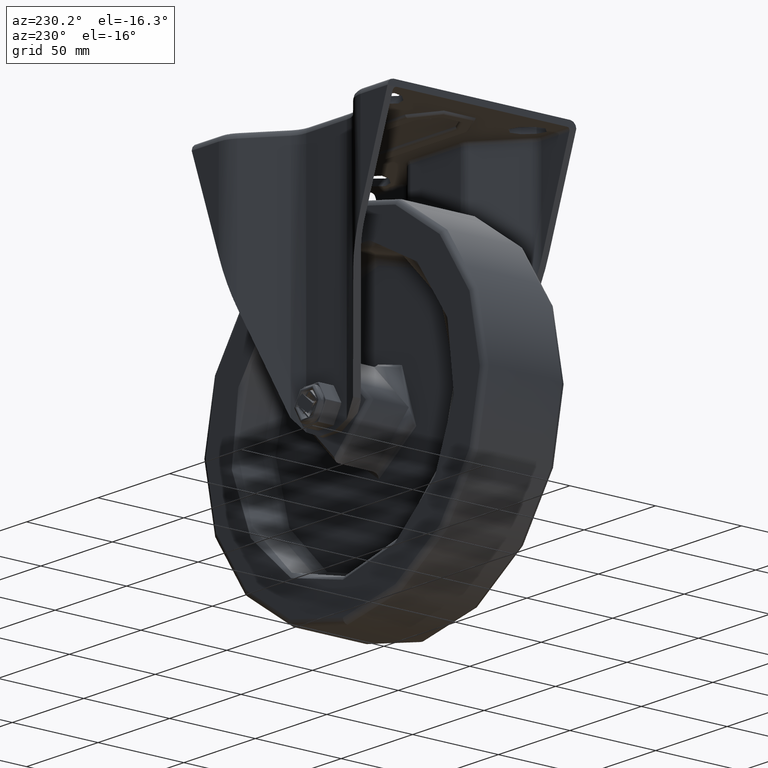
[diagram: clean part render]
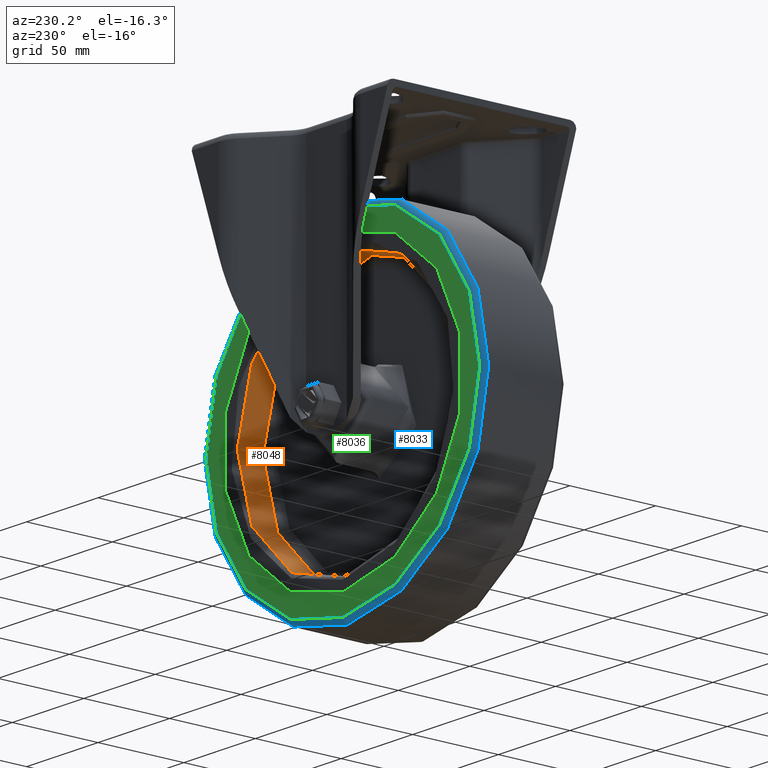
[diagram: same view with three faces highlighted in distinct colors, each labeled with its STEP entity id]
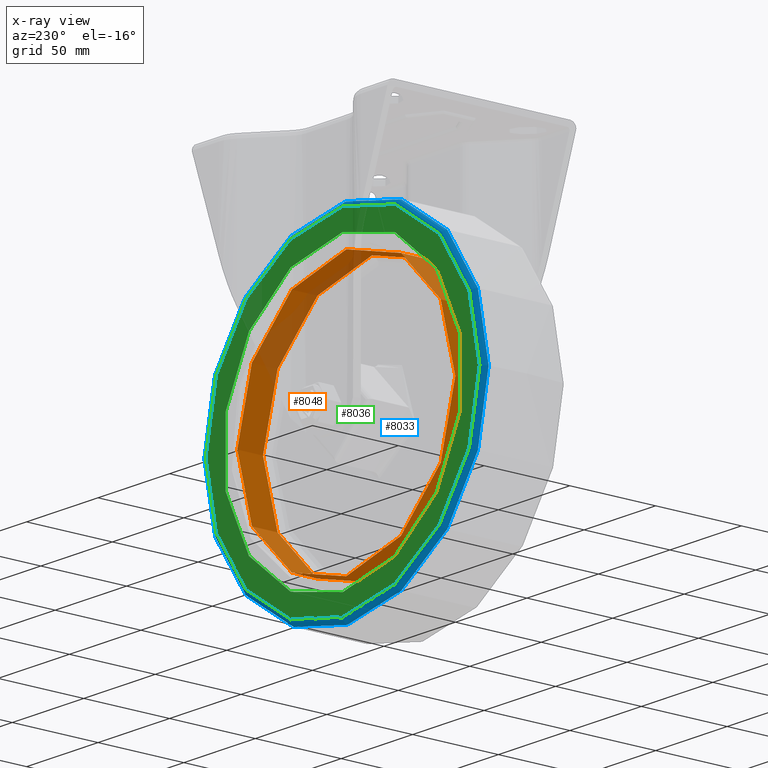
[diagram: x-ray of the same camera — body ghosted, the three highlighted faces saturated]
A machine part, auxiliary view with three faces highlighted in distinct colors.
The next image is the same camera in x-ray (body ghosted, the three faces saturated) — at least one of them is partly hidden behind the body in this view.
Their STEP definitions:

[orange] entity #8048 — the highlighted cylindrical surface (bore or boss wall) has radius 76.25 mm, axis along (0, 1, 0).
#913=FACE_OUTER_BOUND('',#1411,.T.);
#1411=EDGE_LOOP('',(#6142,#6143,#6144,#6145));
#1962=LINE('',#12906,#2587);
#2587=VECTOR('',#10248,76.25);
#3151=CIRCLE('',#8827,76.25);
#3152=CIRCLE('',#8829,76.25);
#3626=VERTEX_POINT('',#12901);
#3627=VERTEX_POINT('',#12905);
#4533=EDGE_CURVE('',#3626,#3626,#3151,.T.);
#4534=EDGE_CURVE('',#3626,#3627,#1962,.T.);
#4535=EDGE_CURVE('',#3627,#3627,#3152,.T.);
#6142=ORIENTED_EDGE('',*,*,#4533,.F.);
#6143=ORIENTED_EDGE('',*,*,#4534,.T.);
#6144=ORIENTED_EDGE('',*,*,#4535,.T.);
#6145=ORIENTED_EDGE('',*,*,#4534,.F.);
#7772=CYLINDRICAL_SURFACE('',#8828,76.25);
#8048=ADVANCED_FACE('',(#913),#7772,.F.);
#8827=AXIS2_PLACEMENT_3D('',#12903,#10244,#10245);
#8828=AXIS2_PLACEMENT_3D('',#12904,#10246,#10247);
#8829=AXIS2_PLACEMENT_3D('',#12907,#10249,#10250);
#10244=DIRECTION('center_axis',(0.,1.,0.));
#10245=DIRECTION('ref_axis',(0.,0.,1.));
#10246=DIRECTION('center_axis',(0.,1.,0.));
#10247=DIRECTION('ref_axis',(0.,0.,1.));
#10248=DIRECTION('',(0.,1.,0.));
#10249=DIRECTION('center_axis',(0.,1.,0.));
#10250=DIRECTION('ref_axis',(0.,0.,1.));
#12901=CARTESIAN_POINT('',(-9.33793184349857E-15,7.00000000000001,-76.25));
#12903=CARTESIAN_POINT('Origin',(0.,7.00000000000001,0.));
#12904=CARTESIAN_POINT('Origin',(0.,14.5,0.));
#12905=CARTESIAN_POINT('',(9.33793184349857E-15,22.0000000000001,-76.25));
#12906=CARTESIAN_POINT('',(-9.33793184349857E-15,14.5,-76.25));
#12907=CARTESIAN_POINT('Origin',(0.,22.0000000000001,0.));

[blue] entity #8033 — the highlighted toroidal blend (fillet) surface has major radius 95.8344 mm and minor (blend) radius 3 mm.
#517=TOROIDAL_SURFACE('',#8782,95.8343644102025,2.99999999999983);
#898=FACE_OUTER_BOUND('',#1394,.T.);
#1394=EDGE_LOOP('',(#6086,#6087,#6088,#6089));
#3122=CIRCLE('',#8783,95.8343644102025);
#3123=CIRCLE('',#8784,2.99999999999983);
#3124=CIRCLE('',#8785,98.8159353890197);
#3605=VERTEX_POINT('',#12805);
#3606=VERTEX_POINT('',#12807);
#4499=EDGE_CURVE('',#3605,#3605,#3122,.T.);
#4500=EDGE_CURVE('',#3605,#3606,#3123,.T.);
#4501=EDGE_CURVE('',#3606,#3606,#3124,.T.);
#6086=ORIENTED_EDGE('',*,*,#4499,.F.);
#6087=ORIENTED_EDGE('',*,*,#4500,.T.);
#6088=ORIENTED_EDGE('',*,*,#4501,.T.);
#6089=ORIENTED_EDGE('',*,*,#4500,.F.);
#8033=ADVANCED_FACE('',(#898),#517,.T.);
#8782=AXIS2_PLACEMENT_3D('',#12804,#10149,#10150);
#8783=AXIS2_PLACEMENT_3D('',#12806,#10151,#10152);
#8784=AXIS2_PLACEMENT_3D('',#12808,#10153,#10154);
#8785=AXIS2_PLACEMENT_3D('',#12809,#10155,#10156);
#10149=DIRECTION('center_axis',(0.,1.,0.));
#10150=DIRECTION('ref_axis',(0.,0.,1.));
#10151=DIRECTION('center_axis',(0.,1.,0.));
#10152=DIRECTION('ref_axis',(0.,0.,1.));
#10153=DIRECTION('center_axis',(-1.,0.,1.22464679914735E-16));
#10154=DIRECTION('ref_axis',(-1.22464679914735E-16,0.,-1.));
#10155=DIRECTION('center_axis',(0.,1.,0.));
#10156=DIRECTION('ref_axis',(0.,0.,1.));
#12804=CARTESIAN_POINT('Origin',(0.,21.0000000000002,0.));
#12805=CARTESIAN_POINT('',(1.17363247623275E-14,24.,-95.8343644102025));
#12806=CARTESIAN_POINT('Origin',(0.,24.,0.));
#12807=CARTESIAN_POINT('',(1.21014618978915E-14,21.3320158102769,-98.8159353890197));
#12808=CARTESIAN_POINT('Origin',(-1.17363247623276E-14,21.0000000000002,
-95.8343644102025));
#12809=CARTESIAN_POINT('Origin',(0.,21.3320158102769,0.));

[green] entity #8036 — the highlighted planar face has unit normal (0, 1, -0).
#264=FACE_BOUND('',#1398,.T.);
#356=PLANE('',#8791);
#901=FACE_OUTER_BOUND('',#1397,.T.);
#1397=EDGE_LOOP('',(#6098));
#1398=EDGE_LOOP('',(#6099));
#3121=CIRCLE('',#8781,84.);
#3122=CIRCLE('',#8783,95.8343644102025);
#3604=VERTEX_POINT('',#12801);
#3605=VERTEX_POINT('',#12805);
#4498=EDGE_CURVE('',#3604,#3604,#3121,.T.);
#4499=EDGE_CURVE('',#3605,#3605,#3122,.T.);
#6098=ORIENTED_EDGE('',*,*,#4499,.T.);
#6099=ORIENTED_EDGE('',*,*,#4498,.F.);
#8036=ADVANCED_FACE('',(#901,#264),#356,.T.);
#8781=AXIS2_PLACEMENT_3D('',#12803,#10147,#10148);
#8783=AXIS2_PLACEMENT_3D('',#12806,#10151,#10152);
#8791=AXIS2_PLACEMENT_3D('',#12844,#10167,#10168);
#10147=DIRECTION('center_axis',(0.,1.,0.));
#10148=DIRECTION('ref_axis',(0.,0.,1.));
#10151=DIRECTION('center_axis',(0.,1.,0.));
#10152=DIRECTION('ref_axis',(0.,0.,1.));
#10167=DIRECTION('center_axis',(0.,1.,-1.75900293333671E-15));
#10168=DIRECTION('ref_axis',(0.,1.75900293333671E-15,1.));
#12801=CARTESIAN_POINT('',(1.02870331128378E-14,24.,-84.));
#12803=CARTESIAN_POINT('Origin',(0.,24.,0.));
#12805=CARTESIAN_POINT('',(1.17363247623275E-14,24.,-95.8343644102025));
#12806=CARTESIAN_POINT('Origin',(0.,24.,0.));
#12844=CARTESIAN_POINT('Origin',(0.,24.,89.9171822051012));